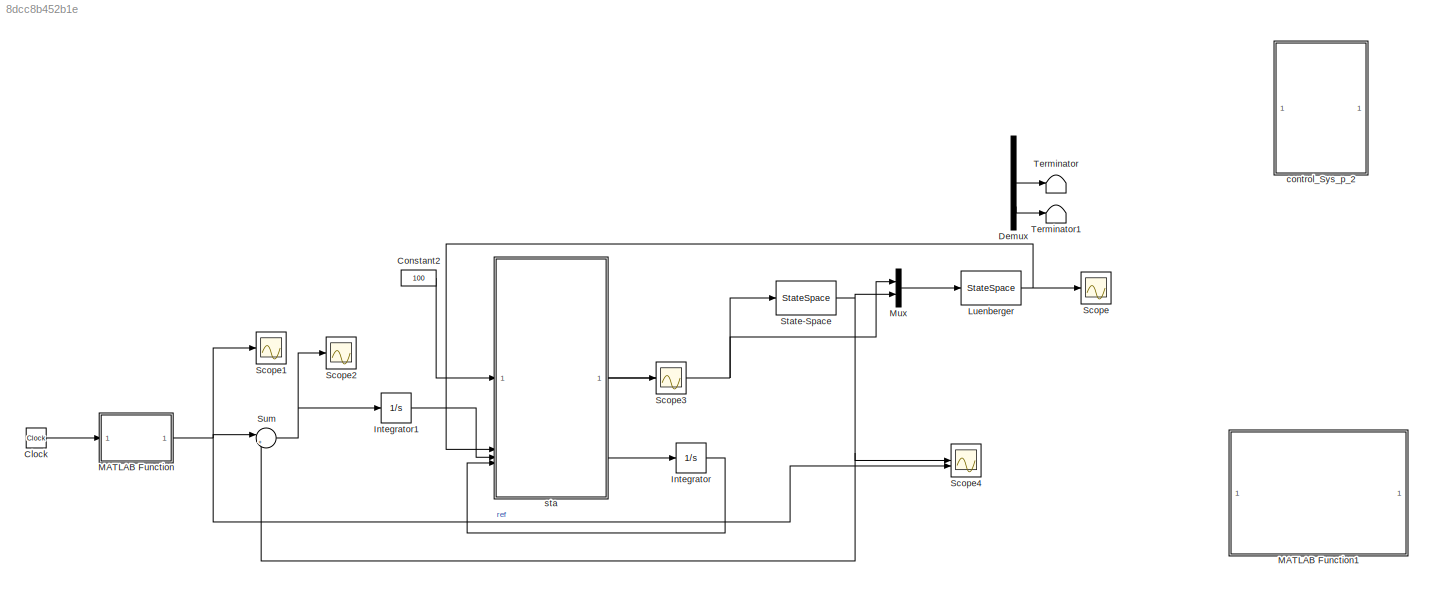
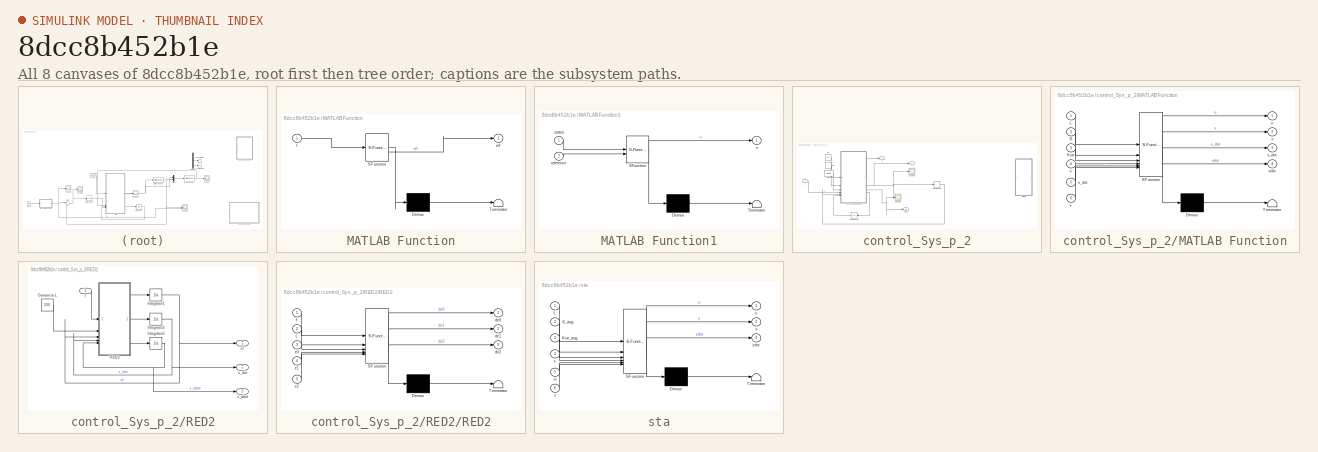
[diagram: thumbnail index - all 8 canvases of the model, root first then tree order]
MODEL slx_8dcc8b452b1e
KIND model
CONFIG AbsTol = auto
CONFIG EnableMultiTasking = off
CONFIG FixedStep = 0.001
CONFIG MaxStep = auto
CONFIG MinStep = auto
CONFIG RelTol = 1e-3
CONFIG SampleTimeConstraint = Unconstrained
CONFIG SolverName = ode1
CONFIG StartTime = 0.0
CONFIG StopTime = 20
BLOCK [Clock] Clock
BLOCK [Constant] Constant2
  Value = 100
BLOCK [Demux] Demux
  Commented = on
  Outputs = 3
BLOCK [Integrator] Integrator
BLOCK [Integrator] Integrator1
BLOCK [StateSpace] Luenberger
  A = A-L*C
  B = [B L]
  C = eye(3)
  D = zeros(3,2)
  InitialCondition = [0, 0, 0]'
BLOCK [SubSystem] MATLAB Function
  ErrorFcn = Stateflow.Translate.translate
  PermitHierarchicalResolution = ExplicitOnly
  SFBlockType = MATLAB Function
  TreatAsAtomicUnit = on
BLOCK [Demux] MATLAB Function/ Demux 
  Outputs = 1
BLOCK [S-Function] MATLAB Function/ SFunction 
  EnableBusSupport = on
  FunctionName = sf_sfun
  PortCounts = [1 2]
  SFcnIsStateOwnerBlock = off
  SFunctionDeploymentMode = off
  Tag = Stateflow S-Function 2
BLOCK [Terminator] MATLAB Function/ Terminator 
BLOCK [Outport] MATLAB Function/ref
BLOCK [Inport] MATLAB Function/t
BLOCK [SubSystem] MATLAB Function1
  Commented = on
  ErrorFcn = Stateflow.Translate.translate
  PermitHierarchicalResolution = ExplicitOnly
  SFBlockType = MATLAB Function
  TreatAsAtomicUnit = on
BLOCK [Demux] MATLAB Function1/ Demux 
  Outputs = 1
BLOCK [S-Function] MATLAB Function1/ SFunction 
  EnableBusSupport = on
  FunctionName = sf_sfun
  PortCounts = [2 2]
  SFcnIsStateOwnerBlock = off
  SFunctionDeploymentMode = off
  Tag = Stateflow S-Function 1
BLOCK [Terminator] MATLAB Function1/ Terminator 
BLOCK [Inport] MATLAB Function1/reference
  Port = 2
BLOCK [Inport] MATLAB Function1/states
BLOCK [Outport] MATLAB Function1/u
BLOCK [Mux] Mux
  DisplayOption = bar
  Inputs = 2
BLOCK [Scope] Scope
  Floating = off
  NumInputPorts = 1
  ScopeSpecificationString = Simulink.scopes.TimeScopeBlockCfg('CurrentConfiguration', extmgr.ConfigurationSet(extmgr.Configuration('Core','General UI',true),extmgr.Configuration('Core','Source UI',true),extmgr.Configuration('Sources','WiredSimulink',true,'DataLoggingVariableName','ScopeData1'),extmgr.Configuration('Visuals','Time Domain',true,'SerializedDisplays',{struct('MinYLimReal','-0.01242','MaxYLimReal','0.01955','YLab...<+1532ch>
BLOCK [Scope] Scope1
  Floating = off
  NumInputPorts = 1
  ScopeSpecificationString = Simulink.scopes.TimeScopeBlockCfg('CurrentConfiguration', extmgr.ConfigurationSet(extmgr.Configuration('Core','General UI',true),extmgr.Configuration('Core','Source UI',true),extmgr.Configuration('Sources','WiredSimulink',true,'DataLoggingVariableName','ScopeData2'),extmgr.Configuration('Visuals','Time Domain',true,'SerializedDisplays',{struct('MinYLimReal','-0.01242','MaxYLimReal','0.01955','YLab...<+1493ch>
BLOCK [Scope] Scope2
  Floating = off
  NumInputPorts = 1
  ScopeSpecificationString = Simulink.scopes.TimeScopeBlockCfg('CurrentConfiguration', extmgr.ConfigurationSet(extmgr.Configuration('Core','General UI',true),extmgr.Configuration('Core','Source UI',true),extmgr.Configuration('Sources','WiredSimulink',true,'DataLoggingVariableName','ScopeData3'),extmgr.Configuration('Visuals','Time Domain',true,'SerializedDisplays',{struct('MinYLimReal','-0.01242','MaxYLimReal','0.01955','YLab...<+1493ch>
BLOCK [Scope] Scope3
  Floating = off
  NumInputPorts = 1
  ScopeSpecificationString = Simulink.scopes.TimeScopeBlockCfg('CurrentConfiguration', extmgr.ConfigurationSet(extmgr.Configuration('Core','General UI',true),extmgr.Configuration('Core','Source UI',true),extmgr.Configuration('Sources','WiredSimulink',true,'DataLoggingVariableName','ScopeData4'),extmgr.Configuration('Visuals','Time Domain',true,'SerializedDisplays',{struct('MinYLimReal','-0.000012','MaxYLimReal','0.000012','YL...<+1503ch>
BLOCK [Scope] Scope4
  Floating = off
  NumInputPorts = 2
  ScopeSpecificationString = Simulink.scopes.TimeScopeBlockCfg('CurrentConfiguration', extmgr.ConfigurationSet(extmgr.Configuration('Core','General UI',true),extmgr.Configuration('Core','Source UI',true),extmgr.Configuration('Sources','WiredSimulink',true,'DataLoggingVariableName','ScopeData5'),extmgr.Configuration('Visuals','Time Domain',true,'SerializedDisplays',{struct('MinYLimReal','-0.00831','MaxYLimReal','0.00758','YLab...<+1507ch>
BLOCK [StateSpace] State-Space
  A = A
  B = B
  C = C
  D = D
  InitialCondition = [0, 0, 0]'
BLOCK [Sum] Sum
  Inputs = |+-
BLOCK [Terminator] Terminator
  Commented = on
BLOCK [Terminator] Terminator1
  Commented = on
BLOCK [SubSystem] control_Sys_p_2
  Commented = on
BLOCK [Derivative] control_Sys_p_2/Derivative
BLOCK [Integrator] control_Sys_p_2/Integrator
  NameLocation = top
BLOCK [Constant] control_Sys_p_2/Kuep
  Value = Kueq
  VectorParams1D = off
BLOCK [Constant] control_Sys_p_2/Lp
  Value = 100
  VectorParams1D = off
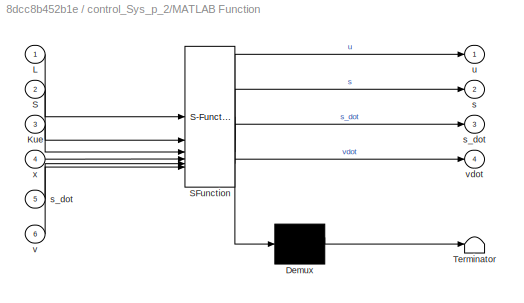
BLOCK [SubSystem] control_Sys_p_2/MATLAB Function
  ErrorFcn = Stateflow.Translate.translate
  PermitHierarchicalResolution = ExplicitOnly
  SFBlockType = MATLAB Function
  TreatAsAtomicUnit = on
BLOCK [Demux] control_Sys_p_2/MATLAB Function/ Demux 
  Outputs = 1
BLOCK [S-Function] control_Sys_p_2/MATLAB Function/ SFunction 
  EnableBusSupport = on
  FunctionName = sf_sfun
  PortCounts = [6 5]
  SFcnIsStateOwnerBlock = off
  SFunctionDeploymentMode = off
  Tag = Stateflow S-Function 7
BLOCK [Terminator] control_Sys_p_2/MATLAB Function/ Terminator 
BLOCK [Inport] control_Sys_p_2/MATLAB Function/Kue
  Port = 3
BLOCK [Inport] control_Sys_p_2/MATLAB Function/L
BLOCK [Inport] control_Sys_p_2/MATLAB Function/S
  Port = 2
BLOCK [Outport] control_Sys_p_2/MATLAB Function/s
  Port = 2
BLOCK [Outport] control_Sys_p_2/MATLAB Function/s_dot
  Port = 3
BLOCK [Inport] control_Sys_p_2/MATLAB Function/s_dot 
  Port = 5
BLOCK [Outport] control_Sys_p_2/MATLAB Function/u
BLOCK [Inport] control_Sys_p_2/MATLAB Function/v
  Port = 6
BLOCK [Outport] control_Sys_p_2/MATLAB Function/vdot
  Port = 4
BLOCK [Inport] control_Sys_p_2/MATLAB Function/x
  Port = 4
BLOCK [SubSystem] control_Sys_p_2/RED2
  Commented = on
BLOCK [Constant] control_Sys_p_2/RED2/Ganancia L
  Commented = on
  Value = 500
BLOCK [Integrator] control_Sys_p_2/RED2/Integrator1
  Commented = on
BLOCK [Integrator] control_Sys_p_2/RED2/Integrator2
  Commented = on
BLOCK [Integrator] control_Sys_p_2/RED2/Integrator3
  Commented = on
BLOCK [SubSystem] control_Sys_p_2/RED2/RED2
  Commented = on
  ErrorFcn = Stateflow.Translate.translate
  PermitHierarchicalResolution = ExplicitOnly
  SFBlockType = MATLAB Function
  TreatAsAtomicUnit = on
BLOCK [Demux] control_Sys_p_2/RED2/RED2/ Demux 
  Outputs = 1
BLOCK [S-Function] control_Sys_p_2/RED2/RED2/ SFunction 
  EnableBusSupport = on
  FunctionName = sf_sfun
  PortCounts = [5 4]
  SFcnIsStateOwnerBlock = off
  SFunctionDeploymentMode = off
  Tag = Stateflow S-Function 11
BLOCK [Terminator] control_Sys_p_2/RED2/RED2/ Terminator 
BLOCK [Inport] control_Sys_p_2/RED2/RED2/L
  Port = 2
BLOCK [Outport] control_Sys_p_2/RED2/RED2/dz0
BLOCK [Outport] control_Sys_p_2/RED2/RED2/dz1
  Port = 2
BLOCK [Outport] control_Sys_p_2/RED2/RED2/dz2
  Port = 3
BLOCK [Inport] control_Sys_p_2/RED2/RED2/f
BLOCK [Inport] control_Sys_p_2/RED2/RED2/z0
  Port = 3
BLOCK [Inport] control_Sys_p_2/RED2/RED2/z1
  Port = 4
BLOCK [Inport] control_Sys_p_2/RED2/RED2/z2
  Port = 5
BLOCK [Inport] control_Sys_p_2/RED2/f
BLOCK [Outport] control_Sys_p_2/RED2/x_ddot
  Port = 3
BLOCK [Outport] control_Sys_p_2/RED2/x_dot
  Port = 2
BLOCK [Outport] control_Sys_p_2/RED2/xf
BLOCK [Scope] control_Sys_p_2/Scope1
  Floating = off
  NumInputPorts = 1
  ScopeSpecificationString = Simulink.scopes.TimeScopeBlockCfg('CurrentConfiguration', extmgr.ConfigurationSet(extmgr.Configuration('Core','General UI',true),extmgr.Configuration('Core','Source UI',true),extmgr.Configuration('Sources','WiredSimulink',true,'DataLoggingVariableName','ScopeData1'),extmgr.Configuration('Visuals','Time Domain',true,'SerializedDisplays',{struct('MinYLimReal','-34827291277267932444140214061119999157...<+3969ch>
BLOCK [Scope] control_Sys_p_2/Scope4
  Floating = off
  NumInputPorts = 1
  ScopeSpecificationString = Simulink.scopes.TimeScopeBlockCfg('CurrentConfiguration', extmgr.ConfigurationSet(extmgr.Configuration('Core','General UI',true),extmgr.Configuration('Core','Source UI',true),extmgr.Configuration('Sources','WiredSimulink',true,'DataLoggingVariableName','ScopeData5'),extmgr.Configuration('Visuals','Time Domain',true,'SerializedDisplays',{struct('MinYLimReal','-44021740381355801113263709505300846415...<+2093ch>
BLOCK [Constant] control_Sys_p_2/Sp
  Value = S
  VectorParams1D = off
BLOCK [Outport] control_Sys_p_2/s
  Port = 2
BLOCK [Outport] control_Sys_p_2/sdot
  Port = 3
BLOCK [Outport] control_Sys_p_2/u
BLOCK [Inport] control_Sys_p_2/x
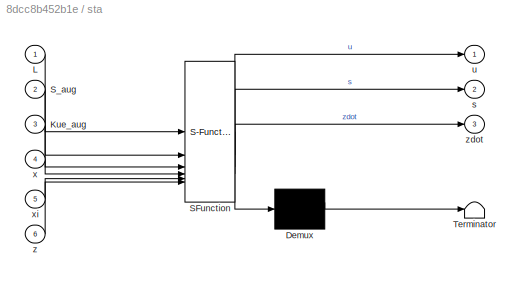
BLOCK [SubSystem] sta
  ErrorFcn = Stateflow.Translate.translate
  PermitHierarchicalResolution = ExplicitOnly
  SFBlockType = MATLAB Function
  TreatAsAtomicUnit = on
BLOCK [Demux] sta/ Demux 
  Outputs = 1
BLOCK [S-Function] sta/ SFunction 
  EnableBusSupport = on
  FunctionName = sf_sfun
  PortCounts = [6 4]
  SFcnIsStateOwnerBlock = off
  SFunctionDeploymentMode = off
  Tag = Stateflow S-Function 3
BLOCK [Terminator] sta/ Terminator 
BLOCK [Inport] sta/Kue_aug
  Port = 3
BLOCK [Inport] sta/L
BLOCK [Inport] sta/S_aug
  Port = 2
BLOCK [Outport] sta/s
  Port = 2
BLOCK [Outport] sta/u
BLOCK [Inport] sta/x
  Port = 4
BLOCK [Inport] sta/xi
  Port = 5
BLOCK [Inport] sta/z
  Port = 6
BLOCK [Outport] sta/zdot
  Port = 3
LINE Clock:1 -> MATLAB Function:1
LINE Constant2:1 -> sta:1
LINE Demux:2 -> Terminator:1
LINE Demux:3 -> Terminator1:1
LINE Integrator1:1 -> sta:5
LINE Integrator:1 -> sta:6
NET Luenberger:1 -> Scope:1, sta:4
NET MATLAB Function:1 -> Scope1:1, Scope4:2, Sum:1
LINE Mux:1 -> Luenberger:1
NET State-Space:1 -> Mux:2, Scope4:1, Sum:2
NET Sum:1 -> Integrator1:1, Scope2:1
LINE control_Sys_p_2/Derivative:1 -> control_Sys_p_2/MATLAB Function:5
LINE control_Sys_p_2/Integrator:1 -> control_Sys_p_2/MATLAB Function:6
LINE control_Sys_p_2/Kuep:1 -> control_Sys_p_2/MATLAB Function:3
LINE control_Sys_p_2/Lp:1 -> control_Sys_p_2/MATLAB Function:1
LINE control_Sys_p_2/MATLAB Function:1 -> control_Sys_p_2/u:1
NET control_Sys_p_2/MATLAB Function:2 -> control_Sys_p_2/Derivative:1, control_Sys_p_2/Scope4:1, control_Sys_p_2/s:1
NET control_Sys_p_2/MATLAB Function:3 -> control_Sys_p_2/Scope1:1, control_Sys_p_2/sdot:1
LINE control_Sys_p_2/MATLAB Function:4 -> control_Sys_p_2/Integrator:1
LINE control_Sys_p_2/RED2/Ganancia L:1 -> control_Sys_p_2/RED2/RED2:2
NET control_Sys_p_2/RED2/Integrator1:1 -> control_Sys_p_2/RED2/RED2:3, control_Sys_p_2/RED2/xf:1
NET control_Sys_p_2/RED2/Integrator2:1 -> control_Sys_p_2/RED2/RED2:4, control_Sys_p_2/RED2/x_dot:1
NET control_Sys_p_2/RED2/Integrator3:1 -> control_Sys_p_2/RED2/RED2:5, control_Sys_p_2/RED2/x_ddot:1
LINE control_Sys_p_2/RED2/RED2:1 -> control_Sys_p_2/RED2/Integrator1:1
LINE control_Sys_p_2/RED2/RED2:2 -> control_Sys_p_2/RED2/Integrator2:1
LINE control_Sys_p_2/RED2/RED2:3 -> control_Sys_p_2/RED2/Integrator3:1
LINE control_Sys_p_2/RED2/f:1 -> control_Sys_p_2/RED2/RED2:1
LINE control_Sys_p_2/Sp:1 -> control_Sys_p_2/MATLAB Function:2
LINE control_Sys_p_2/x:1 -> control_Sys_p_2/MATLAB Function:4
NET sta:1 -> Mux:1, State-Space:1
LINE sta:2 -> Scope3:1
LINE sta:3 -> Integrator:1
note: NET lines group one-source signal fan-out (src -> all destinations, sorted); 1:1 wires keep LINE
CHART MATLAB Function1 states=1 transitions=1
  STATE_LABEL 'eML_blk_kernel()'
  STATE_LABEL 'SCRIPT:\nfunction u = rnn_controller_simulink(states, reference)\n%#codegen\n\n% Variables persistentes para mantener Python inicializado\npersistent python_initialized\n\n% Inicializar Python engine una sola vez\nif isempty(python_initialized)\n    % Agregar ruta donde está el archivo Python\n    pyrun("import sys");\n    pyrun("sys.path.append(r\'<userpath><path><+626ch>'
CHART MATLAB Function states=1 transitions=1
  STATE_LABEL 'eML_blk_kernel()'
  STATE_LABEL 'SCRIPT:\n\nfunction ref = fcn(t)\na0 = 0.007;  % Punto de equilibrio\nif t < 3\n    ref = 0.012 - a0;  % Desviación: +5mm\nelseif t < 6\n    ref = 0.009 - a0;  % Desviación: +2mm  \nelseif t < 9\n    ref = 0.002 - a0;  % Desviación: -5mm\nelse\n    ref = 0;           % Equilibrio (desviación = 0)\nend'
CHART sta states=1 transitions=1
  STATE_LABEL 'eML_blk_kernel()'
  STATE_LABEL 'SCRIPT:\nfunction [u, s, zdot] = fcn(L, S_aug, Kue_aug, x, xi, z)\n    % Estados aumentados: x (3x1) + xi (integral del error)\n    x_aug = zeros(4,1);\n\n    S_aug = [-285.64144     -5.0574812         0.4125      3569.9867];\n    Kue_aug =[-10657.6854     -285.641438          60.125               0];\n\n    x_aug = [x; xi];  % Estado aumentado 4x1\n    \n    % Superficie deslizante: s = S_x*x + S_xi*xi\n   ...<+237ch>'
CHART control_Sys_p_2/MATLAB Function states=1 transitions=1
  STATE_LABEL 'eML_blk_kernel()'
  STATE_LABEL 'SCRIPT:\nfunction [u, s, s_dot, vdot] = fcn(L, S, Kue, x, s_dot, v)\n   \n    ueq = -Kue*x;\n    s = S*x;\n    \n    A = 1.0e+03 * [          0,    0.0010,         0;\n                        1.4014,         0,    0.0139;\n                             0,         0,   -0.0242];\n\n    % % Calculemos x_dot analíticamente:\n    x_dot = A*x;\n    % \n    s_dot = S*x_dot;\n    \n    % Forzar que sean escalares\n    s ...<+193ch>'
CHART control_Sys_p_2/RED2/RED2 states=1 transitions=1
  STATE_LABEL 'eML_blk_kernel()'
  STATE_LABEL 'SCRIPT:\nfunction [dz0,dz1,dz2] = fcn(f,L,z0,z1,z2)\n% Derivador exacto de Levant para vector de n señales\n% f: vector de entrada (nx1)\n% L: parámetro de ganancia (escalar o vector nx1)\n% z0,z1,z2: estados del derivador (nx1 cada uno)\n\nk0 = 4.80;\nk1 = 5.65;\nk2 = 1.1;\n\n% Obtener dimensión del vector\nn = length(f);\n\n% Inicializar salidas\ndz0 = zeros(n,1);\ndz1 = zeros(n,1);\ndz2 = zeros(n,1);\n\n% Permiti...<+315ch>'
CHART  states=0 transitions=0
CHART  states=0 transitions=0
CHART  states=0 transitions=0
CHART  states=0 transitions=0
CHART  states=0 transitions=0
note: 1 file-system path scrubbed to <path> (not preserved elsewhere — flat text is the only slx artifact)
